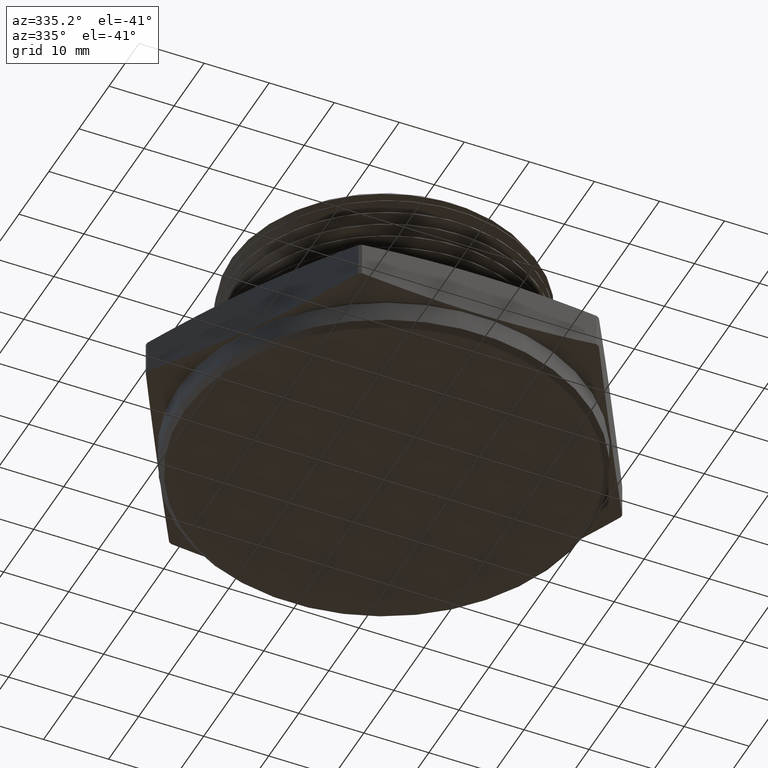
[diagram: clean part render]
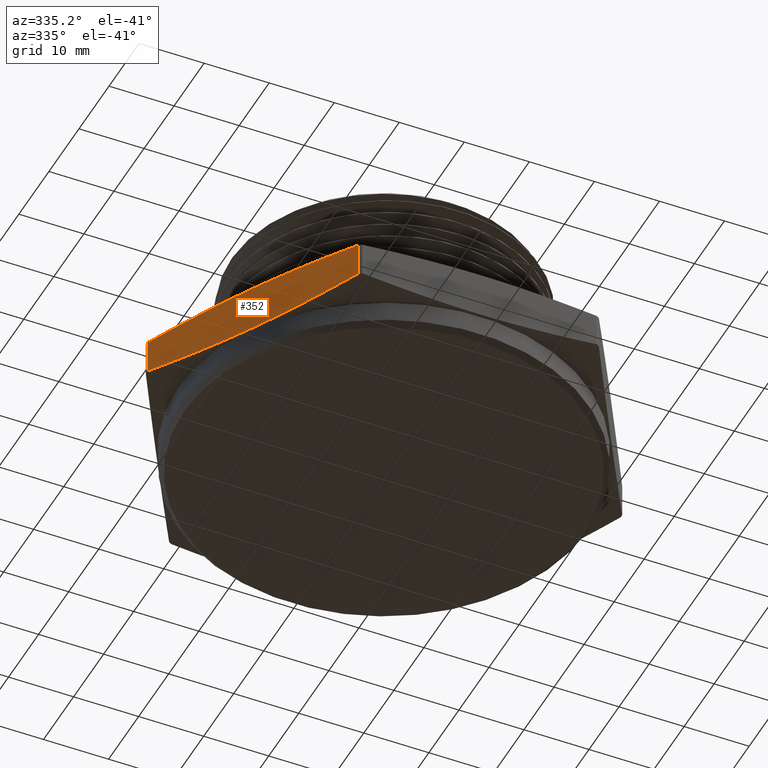
[diagram: same view with one face highlighted and labeled with its STEP entity id]
A machine part, auxiliary view. The second image highlights one B-rep face of the part: STEP entity #352.
In plain terms, the highlighted planar face has unit normal (0.866, 0.5, -0).
Its self-contained STEP definition (entity closure, byte-faithful):
#190 = EDGE_CURVE ( 'NONE', #661, #645, #425, .T. ) ;
#215 = EDGE_CURVE ( 'NONE', #607, #661, #7408, .T. ) ;
#220 = EDGE_CURVE ( 'NONE', #645, #723, #7413, .T. ) ;
#317 = AXIS2_PLACEMENT_3D ( 'NONE', #5280, #5285, #5286 ) ;
#352 = ADVANCED_FACE ( 'NONE', ( #529 ), #5279, .F. ) ;
#425 = LINE ( 'NONE', #3621, #428 ) ;
#428 = VECTOR ( 'NONE', #3623, 39.37007874015748100 ) ;
#529 = FACE_OUTER_BOUND ( 'NONE', #5004, .T. ) ;
#587 = LINE ( 'NONE', #853, #595 ) ;
#595 = VECTOR ( 'NONE', #850, 39.37007874015748100 ) ;
#607 = VERTEX_POINT ( 'NONE', #3499 ) ;
#645 = VERTEX_POINT ( 'NONE', #3533 ) ;
#661 = VERTEX_POINT ( 'NONE', #3549 ) ;
#723 = VERTEX_POINT ( 'NONE', #3590 ) ;
#850 = DIRECTION ( 'NONE',  ( -1.254986547952384500E-016, -0.0000000000000000000, -1.000000000000000000 ) ) ;
#853 = CARTESIAN_POINT ( 'NONE',  ( -1.437337626038241600, -0.01045820407133088100, 4.452765956256804500E-017 ) ) ;
#3499 = CARTESIAN_POINT ( 'NONE',  ( -1.437337626038241600, -0.01045820407133088100, 0.04195349440467256700 ) ) ;
#3533 = CARTESIAN_POINT ( 'NONE',  ( -0.7277258834228542700, -1.239541795928669900, 0.2480465055953273400 ) ) ;
#3549 = CARTESIAN_POINT ( 'NONE',  ( -0.7277258834228542700, -1.239541795928669900, 0.04195349440467248400 ) ) ;
#3590 = CARTESIAN_POINT ( 'NONE',  ( -1.437337626038241800, -0.01045820407133088300, 0.2480465055953274000 ) ) ;
#3621 = CARTESIAN_POINT ( 'NONE',  ( -0.7277258834228542700, -1.239541795928669900, -4.452765956256804500E-017 ) ) ;
#3623 = DIRECTION ( 'NONE',  ( 1.254986547952384500E-016, 0.0000000000000000000, 1.000000000000000000 ) ) ;
#4899 = ORIENTED_EDGE ( 'NONE', *, *, #215, .T. ) ;
#4900 = ORIENTED_EDGE ( 'NONE', *, *, #190, .T. ) ;
#4901 = ORIENTED_EDGE ( 'NONE', *, *, #220, .T. ) ;
#4902 = ORIENTED_EDGE ( 'NONE', *, *, #7789, .T. ) ;
#5004 = EDGE_LOOP ( 'NONE', ( #4899, #4900, #4901, #4902 ) ) ;
#5279 = PLANE ( 'NONE',  #317 ) ;
#5280 = CARTESIAN_POINT ( 'NONE',  ( -1.443375672974064800, 2.743868244088531200E-016, 0.2899999999999999800 ) ) ;
#5285 = DIRECTION ( 'NONE',  ( 0.8660254037844384900, 0.5000000000000004400, -0.0000000000000000000 ) ) ;
#5286 = DIRECTION ( 'NONE',  ( -0.5000000000000003300, 0.8660254037844383700, 0.0000000000000000000 ) ) ;
#6399 = CARTESIAN_POINT ( 'NONE',  ( -1.378203314153626100, -0.1128818367261091700, 0.02954284341270647900 ) ) ;
#6400 = CARTESIAN_POINT ( 'NONE',  ( -1.319069002269010100, -0.2153054693808874300, 0.01948585297747162600 ) ) ;
#6404 = CARTESIAN_POINT ( 'NONE',  ( -1.437337626038241600, -0.01045820407133088100, 0.04195349440467256700 ) ) ;
#6405 = CARTESIAN_POINT ( 'NONE',  ( -1.200800378499778900, -0.4201527346904436200, 0.005757171571575467700 ) ) ;
#6406 = CARTESIAN_POINT ( 'NONE',  ( -1.082531754730547700, -0.6250000000000003300, -0.001506040338175323200 ) ) ;
#6407 = CARTESIAN_POINT ( 'NONE',  ( -0.9642631309613167700, -0.8298472653095567700, 0.005757171571575439900 ) ) ;
#6408 = CARTESIAN_POINT ( 'NONE',  ( -0.8459945071920855800, -1.034694530619112900, 0.01948585297747156000 ) ) ;
#6409 = CARTESIAN_POINT ( 'NONE',  ( -0.7868601953074698700, -1.137118163273891600, 0.02954284341270640300 ) ) ;
#6410 = CARTESIAN_POINT ( 'NONE',  ( -0.7277258834228542700, -1.239541795928669900, 0.04195349440467248400 ) ) ;
#6439 = CARTESIAN_POINT ( 'NONE',  ( -0.7868601953074698700, -1.137118163273891600, 0.2604571565872933500 ) ) ;
#6441 = CARTESIAN_POINT ( 'NONE',  ( -0.8459945071920856900, -1.034694530619113800, 0.2705141470225282400 ) ) ;
#6449 = CARTESIAN_POINT ( 'NONE',  ( -0.7277258834228542700, -1.239541795928669900, 0.2480465055953273400 ) ) ;
#6450 = CARTESIAN_POINT ( 'NONE',  ( -0.9642631309613165500, -0.8298472653095565500, 0.2842428284284243500 ) ) ;
#6451 = CARTESIAN_POINT ( 'NONE',  ( -1.082531754730547700, -0.6250000000000001100, 0.2915060403381751800 ) ) ;
#6452 = CARTESIAN_POINT ( 'NONE',  ( -1.200800378499779200, -0.4201527346904440100, 0.2842428284284244700 ) ) ;
#6453 = CARTESIAN_POINT ( 'NONE',  ( -1.319069002269010600, -0.2153054693808874300, 0.2705141470225283000 ) ) ;
#6454 = CARTESIAN_POINT ( 'NONE',  ( -1.378203314153626100, -0.1128818367261092000, 0.2604571565872935700 ) ) ;
#6455 = CARTESIAN_POINT ( 'NONE',  ( -1.437337626038241800, -0.01045820407133088300, 0.2480465055953274000 ) ) ;
#7408 = B_SPLINE_CURVE_WITH_KNOTS ( 'NONE', 3,
 ( #6404, #6399, #6400, #6405, #6406, #6407, #6408, #6409, #6410 ),
 .UNSPECIFIED., .F., .F.,
 ( 4, 2, 1, 2, 4 ),
 ( 1.905845154233261400E-006, 0.009013974976369633700, 0.01802604410758504700, 0.02703811323880046100, 0.03605018237001587900 ),
 .UNSPECIFIED. ) ;
#7413 = B_SPLINE_CURVE_WITH_KNOTS ( 'NONE', 3,
 ( #6449, #6439, #6441, #6450, #6451, #6452, #6453, #6454, #6455 ),
 .UNSPECIFIED., .F., .F.,
 ( 4, 2, 1, 2, 4 ),
 ( 1.905845154166995000E-006, 0.009013974976369576500, 0.01802604410758498400, 0.02703811323880039900, 0.03605018237001582400 ),
 .UNSPECIFIED. ) ;
#7789 = EDGE_CURVE ( 'NONE', #723, #607, #587, .T. ) ;